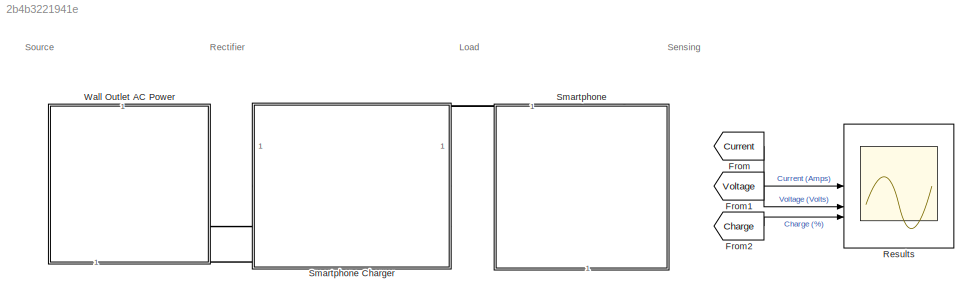
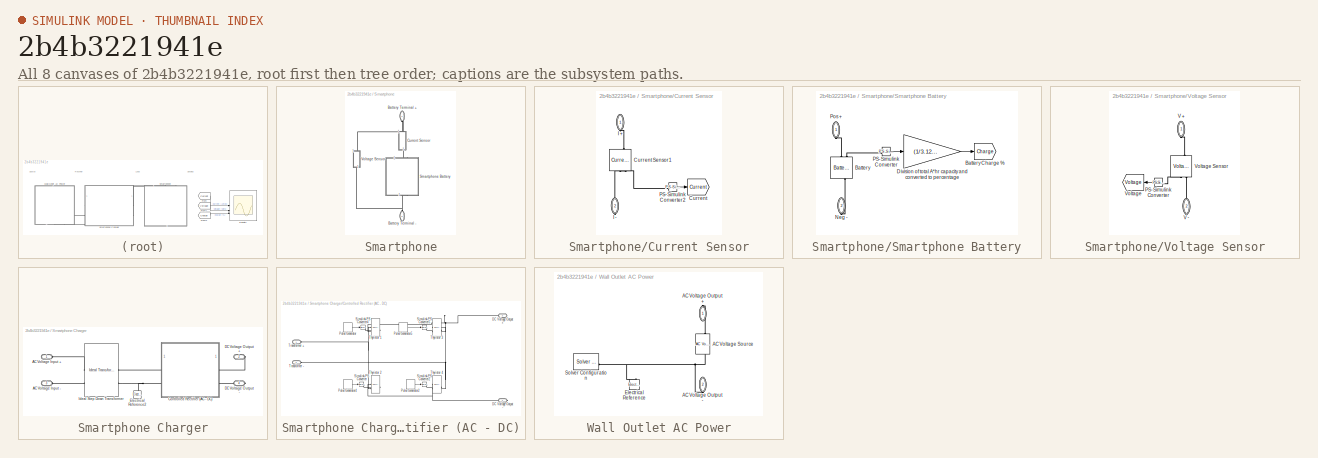
[diagram: thumbnail index - all 8 canvases of the model, root first then tree order]
MODEL slx_2b4b3221941e
KIND model
CONFIG AbsTol = auto
CONFIG EnableMultiTasking = off
CONFIG FixedStep = auto
CONFIG MaxStep = auto
CONFIG MinStep = auto
CONFIG RelTol = 1e-3
CONFIG SampleTimeConstraint = Unconstrained
CONFIG SolverName = ode23t
CONFIG StartTime = 0.0
CONFIG StopTime = 10
BLOCK [From] From
  GotoTag = Current
  TagVisibility = global
BLOCK [From] From1
  GotoTag = Voltage
  TagVisibility = global
BLOCK [From] From2
  GotoTag = Charge
  TagVisibility = global
BLOCK [Scope] Results
  Floating = off
  NumInputPorts = 3
  ScopeSpecificationString = Simulink.scopes.TimeScopeBlockCfg('CurrentConfiguration', extmgr.ConfigurationSet(extmgr.Configuration('Core','General UI',true),extmgr.Configuration('Core','Source UI',true),extmgr.Configuration('Sources','WiredSimulink',true,'DataLoggingVariableName','ScopeData1'),extmgr.Configuration('Visuals','Time Domain',true,'SerializedDisplays',{struct('MinYLimReal','-7.65897','MaxYLimReal','68.93058','YLa...<+3444ch>
BLOCK [SubSystem] Smartphone
  PortSchema = {"entries":[{"content":{"sides":[{"content":{},"type":"ConnectorPlacement.EquallySpacedRectSide","uuid":"c6623932-9384-4505-9c8a-7aa7c6d03efe"},{"content":{"side":"RIGHT"},"type":"ConnectorPlacement.EquallySpacedRectSide","uuid":"b63081fa-6f2e-4d52-89b7-0b15c2ff5a8a"},{"content":{"connectorIds":["LConn1","LConn2"],"side":"TOP"},"type":"ConnectorPlacement.EquallySpacedRectSide","uuid":"293a2b80-333...<+211ch>
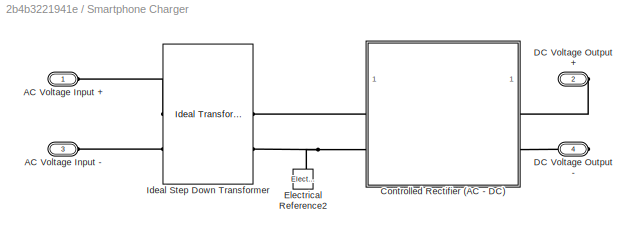
BLOCK [SubSystem] Smartphone Charger
BLOCK [PMIOPort] Smartphone Charger/AC Voltage Input +
  Side = Left
BLOCK [PMIOPort] Smartphone Charger/AC Voltage Input -
  Port = 3
  Side = Left
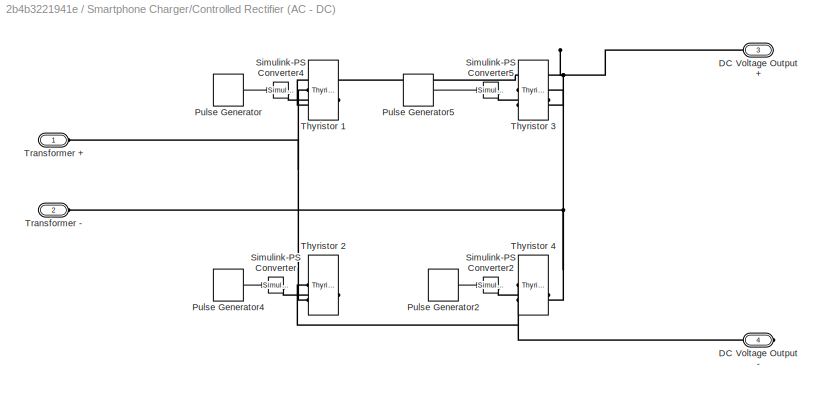
BLOCK [SubSystem] Smartphone Charger/Controlled Rectifier (AC - DC)
BLOCK [PMIOPort] Smartphone Charger/Controlled Rectifier (AC - DC)/DC Voltage Output +
  Port = 3
  Side = Right
BLOCK [PMIOPort] Smartphone Charger/Controlled Rectifier (AC - DC)/DC Voltage Output -
  Port = 4
  Side = Right
BLOCK [DiscretePulseGenerator] Smartphone Charger/Controlled Rectifier (AC - DC)/Pulse Generator
  Period = 0.02
  PhaseDelay = 30*0.02/360
  PulseType = Time based
  PulseWidth = 5
BLOCK [DiscretePulseGenerator] Smartphone Charger/Controlled Rectifier (AC - DC)/Pulse Generator2
  Period = 0.02
  PhaseDelay = 30*0.02/360
  PulseType = Time based
  PulseWidth = 5
BLOCK [DiscretePulseGenerator] Smartphone Charger/Controlled Rectifier (AC - DC)/Pulse Generator4
  Period = 0.02
  PhaseDelay = (180+30)*0.02/360
  PulseType = Time based
  PulseWidth = 5
BLOCK [DiscretePulseGenerator] Smartphone Charger/Controlled Rectifier (AC - DC)/Pulse Generator5
  Period = 0.02
  PhaseDelay = (180+30)*0.02/360
  PulseType = Time based
  PulseWidth = 5
BLOCK [Reference] Smartphone Charger/Controlled Rectifier (AC - DC)/Simulink-PS Converter  REF=nesl_utility/Simulink-PS
Converter
  SourceBlock = nesl_utility/Simulink-PS\nConverter
  SourceType = Simulink-PS\nConverter
BLOCK [Reference] Smartphone Charger/Controlled Rectifier (AC - DC)/Simulink-PS Converter2  REF=nesl_utility/Simulink-PS
Converter
  SourceBlock = nesl_utility/Simulink-PS\nConverter
  SourceType = Simulink-PS\nConverter
BLOCK [Reference] Smartphone Charger/Controlled Rectifier (AC - DC)/Simulink-PS Converter4  REF=nesl_utility/Simulink-PS
Converter
  SourceBlock = nesl_utility/Simulink-PS\nConverter
  SourceType = Simulink-PS\nConverter
BLOCK [Reference] Smartphone Charger/Controlled Rectifier (AC - DC)/Simulink-PS Converter5  REF=nesl_utility/Simulink-PS
Converter
  SourceBlock = nesl_utility/Simulink-PS\nConverter
  SourceType = Simulink-PS\nConverter
BLOCK [Reference] Smartphone Charger/Controlled Rectifier (AC - DC)/Thyristor 1  REF=ee_lib/Semiconductors &
Converters/Thyristor
(Piecewise
Linear)
  NameLocation = right
  SourceBlock = ee_lib/Semiconductors &\nConverters/Thyristor\n(Piecewise\nLinear)
  SourceType = Thyristor\n(Piecewise\nLinear)
BLOCK [Reference] Smartphone Charger/Controlled Rectifier (AC - DC)/Thyristor 2  REF=ee_lib/Semiconductors &
Converters/Thyristor
(Piecewise
Linear)
  NameLocation = right
  SourceBlock = ee_lib/Semiconductors &\nConverters/Thyristor\n(Piecewise\nLinear)
  SourceType = Thyristor\n(Piecewise\nLinear)
BLOCK [Reference] Smartphone Charger/Controlled Rectifier (AC - DC)/Thyristor 3  REF=ee_lib/Semiconductors &
Converters/Thyristor
(Piecewise
Linear)
  NameLocation = right
  SourceBlock = ee_lib/Semiconductors &\nConverters/Thyristor\n(Piecewise\nLinear)
  SourceType = Thyristor\n(Piecewise\nLinear)
BLOCK [Reference] Smartphone Charger/Controlled Rectifier (AC - DC)/Thyristor 4  REF=ee_lib/Semiconductors &
Converters/Thyristor
(Piecewise
Linear)
  NameLocation = right
  SourceBlock = ee_lib/Semiconductors &\nConverters/Thyristor\n(Piecewise\nLinear)
  SourceType = Thyristor\n(Piecewise\nLinear)
BLOCK [PMIOPort] Smartphone Charger/Controlled Rectifier (AC - DC)/Transformer +
  Side = Left
BLOCK [PMIOPort] Smartphone Charger/Controlled Rectifier (AC - DC)/Transformer -
  Port = 2
  Side = Left
BLOCK [PMIOPort] Smartphone Charger/DC Voltage Output +
  Port = 2
  Side = Right
BLOCK [PMIOPort] Smartphone Charger/DC Voltage Output -
  Port = 4
  Side = Right
BLOCK [Reference] Smartphone Charger/Electrical Reference2  REF=fl_lib/Electrical/Electrical Elements/Electrical Reference
  NameLocation = right
  SourceBlock = fl_lib/Electrical/Electrical Elements/Electrical Reference
  SourceType = Electrical Reference
BLOCK [Reference] Smartphone Charger/Ideal Step Down Transformer  REF=fl_lib/Electrical/Electrical Elements/Ideal Transformer
  SourceBlock = fl_lib/Electrical/Electrical Elements/Ideal Transformer
  SourceType = Ideal Transformer
BLOCK [PMIOPort] Smartphone/Battery Terminal +
  NameLocation = left
  Side = Left
BLOCK [PMIOPort] Smartphone/Battery Terminal -
  NameLocation = left
  Port = 2
  Side = Left
BLOCK [SubSystem] Smartphone/Current Sensor
  NameLocation = left
BLOCK [Goto] Smartphone/Current Sensor/Current
  GotoTag = Current
  TagVisibility = global
BLOCK [Reference] Smartphone/Current Sensor/Current Sensor1  REF=fl_lib/Electrical/Electrical Sensors/Current Sensor
  NameLocation = left
  SourceBlock = fl_lib/Electrical/Electrical Sensors/Current Sensor
  SourceType = Current Sensor
BLOCK [PMIOPort] Smartphone/Current Sensor/I +
  NameLocation = left
  Side = Left
BLOCK [PMIOPort] Smartphone/Current Sensor/I -
  NameLocation = left
  Port = 2
  Side = Right
BLOCK [Reference] Smartphone/Current Sensor/PS-Simulink Converter2  REF=nesl_utility/PS-Simulink
Converter
  SourceBlock = nesl_utility/PS-Simulink\nConverter
  SourceType = PS-Simulink\nConverter
BLOCK [SubSystem] Smartphone/Smartphone Battery
  NameLocation = right
BLOCK [Reference] Smartphone/Smartphone Battery/Battery  REF=batteryecm_lib/Battery
  LibrarySourceBlock = batt_lib/Cells/Battery
  NameLocation = left
  SourceBlock = batteryecm_lib/Battery
  SourceType = Battery
BLOCK [Goto] Smartphone/Smartphone Battery/Battery Charge %
  GotoTag = Charge
  TagVisibility = global
BLOCK [Gain] Smartphone/Smartphone Battery/Division of total A*hr capacity and converted to percentage
  Gain = (1/3.125)*100
BLOCK [PMIOPort] Smartphone/Smartphone Battery/Neg -
  NameLocation = left
  Port = 2
  Side = Right
BLOCK [Reference] Smartphone/Smartphone Battery/PS-Simulink Converter  REF=nesl_utility/PS-Simulink
Converter
  SourceBlock = nesl_utility/PS-Simulink\nConverter
  SourceType = PS-Simulink\nConverter
BLOCK [PMIOPort] Smartphone/Smartphone Battery/Pos +
  NameLocation = left
  Side = Left
BLOCK [SubSystem] Smartphone/Voltage Sensor
  NameLocation = left
BLOCK [Reference] Smartphone/Voltage Sensor/PS-Simulink Converter  REF=nesl_utility/PS-Simulink
Converter
  SourceBlock = nesl_utility/PS-Simulink\nConverter
  SourceType = PS-Simulink\nConverter
BLOCK [PMIOPort] Smartphone/Voltage Sensor/V +
  NameLocation = right
  Side = Left
BLOCK [PMIOPort] Smartphone/Voltage Sensor/V -
  NameLocation = right
  Port = 2
  Side = Right
BLOCK [Goto] Smartphone/Voltage Sensor/Voltage
  GotoTag = Voltage
  TagVisibility = global
BLOCK [Reference] Smartphone/Voltage Sensor/Voltage Sensor  REF=fl_lib/Electrical/Electrical Sensors/Voltage Sensor
  NameLocation = right
  SourceBlock = fl_lib/Electrical/Electrical Sensors/Voltage Sensor
  SourceType = Voltage Sensor
BLOCK [SubSystem] Wall Outlet AC Power
  PortSchema = {"entries":[{"content":{"sides":[{"content":{},"type":"ConnectorPlacement.EquallySpacedRectSide","uuid":"c6623932-9384-4505-9c8a-7aa7c6d03efe"},{"content":{"side":"RIGHT"},"type":"ConnectorPlacement.EquallySpacedRectSide","uuid":"b63081fa-6f2e-4d52-89b7-0b15c2ff5a8a"},{"content":{"side":"TOP"},"type":"ConnectorPlacement.EquallySpacedRectSide","uuid":"293a2b80-333e-46a9-baf9-140dd0ae167b"},{"conten...<+337ch>
BLOCK [PMIOPort] Wall Outlet AC Power/AC Voltage Output +
  NameLocation = left
  Side = Right
BLOCK [PMIOPort] Wall Outlet AC Power/AC Voltage Output -
  NameLocation = left
  Port = 2
  Side = Right
BLOCK [Reference] Wall Outlet AC Power/AC Voltage Source  REF=fl_lib/Electrical/Electrical Sources/AC Voltage Source
  NameLocation = right
  SourceBlock = fl_lib/Electrical/Electrical Sources/AC Voltage Source
  SourceType = AC Voltage Source
BLOCK [Reference] Wall Outlet AC Power/Electrical Reference  REF=fl_lib/Electrical/Electrical Elements/Electrical Reference
  NameLocation = right
  SourceBlock = fl_lib/Electrical/Electrical Elements/Electrical Reference
  SourceType = Electrical Reference
BLOCK [Reference] Wall Outlet AC Power/Solver Configuration  REF=nesl_utility/Solver
Configuration
  SourceBlock = nesl_utility/Solver\nConfiguration
  SourceType = Solver\nConfiguration
ANNOTATION (root): Load
ANNOTATION (root): Rectifier
ANNOTATION (root): Sensing
ANNOTATION (root): Source
LINE From1:1 -> Results:2
LINE From2:1 -> Results:3
LINE From:1 -> Results:1
LINE Smartphone Charger/Controlled Rectifier (AC - DC)/Pulse Generator2:1 -> Smartphone Charger/Controlled Rectifier (AC - DC)/Simulink-PS Converter2:1
LINE Smartphone Charger/Controlled Rectifier (AC - DC)/Pulse Generator4:1 -> Smartphone Charger/Controlled Rectifier (AC - DC)/Simulink-PS Converter:1
LINE Smartphone Charger/Controlled Rectifier (AC - DC)/Pulse Generator5:1 -> Smartphone Charger/Controlled Rectifier (AC - DC)/Simulink-PS Converter5:1
LINE Smartphone Charger/Controlled Rectifier (AC - DC)/Pulse Generator:1 -> Smartphone Charger/Controlled Rectifier (AC - DC)/Simulink-PS Converter4:1
LINE Smartphone/Current Sensor/PS-Simulink Converter2:1 -> Smartphone/Current Sensor/Current:1
LINE Smartphone/Smartphone Battery/Division of total A*hr capacity and converted to percentage:1 -> Smartphone/Smartphone Battery/Battery Charge %:1
LINE Smartphone/Smartphone Battery/PS-Simulink Converter:1 -> Smartphone/Smartphone Battery/Division of total A*hr capacity and converted to percentage:1
LINE Smartphone/Voltage Sensor/PS-Simulink Converter:1 -> Smartphone/Voltage Sensor/Voltage:1
PLINE Smartphone Charger/AC Voltage Input +:RConn1 -- Smartphone Charger/Ideal Step Down Transformer:LConn1
PLINE Smartphone Charger/AC Voltage Input -:RConn1 -- Smartphone Charger/Ideal Step Down Transformer:LConn2
PNET net1: Smartphone Charger/Controlled Rectifier (AC - DC)/DC Voltage Output +:RConn1 -- Smartphone Charger/Controlled Rectifier (AC - DC)/Thyristor 1:RConn2 -- Smartphone Charger/Controlled Rectifier (AC - DC)/Thyristor 3:RConn2
PNET net2: Smartphone Charger/Controlled Rectifier (AC - DC)/DC Voltage Output -:RConn1 -- Smartphone Charger/Controlled Rectifier (AC - DC)/Thyristor 2:RConn1 -- Smartphone Charger/Controlled Rectifier (AC - DC)/Thyristor 4:RConn1
PLINE Smartphone Charger/Controlled Rectifier (AC - DC)/Simulink-PS Converter2:RConn1 -- Smartphone Charger/Controlled Rectifier (AC - DC)/Thyristor 4:LConn1
PLINE Smartphone Charger/Controlled Rectifier (AC - DC)/Simulink-PS Converter4:RConn1 -- Smartphone Charger/Controlled Rectifier (AC - DC)/Thyristor 1:LConn1
PLINE Smartphone Charger/Controlled Rectifier (AC - DC)/Simulink-PS Converter5:RConn1 -- Smartphone Charger/Controlled Rectifier (AC - DC)/Thyristor 3:LConn1
PLINE Smartphone Charger/Controlled Rectifier (AC - DC)/Simulink-PS Converter:RConn1 -- Smartphone Charger/Controlled Rectifier (AC - DC)/Thyristor 2:LConn1
PNET net3: Smartphone Charger/Controlled Rectifier (AC - DC)/Thyristor 1:RConn1 -- Smartphone Charger/Controlled Rectifier (AC - DC)/Thyristor 2:RConn2 -- Smartphone Charger/Controlled Rectifier (AC - DC)/Transformer +:RConn1
PNET net4: Smartphone Charger/Controlled Rectifier (AC - DC)/Thyristor 3:RConn1 -- Smartphone Charger/Controlled Rectifier (AC - DC)/Thyristor 4:RConn2 -- Smartphone Charger/Controlled Rectifier (AC - DC)/Transformer -:RConn1
PLINE Smartphone Charger/Controlled Rectifier (AC - DC):LConn1 -- Smartphone Charger/Ideal Step Down Transformer:RConn1
PNET net5: Smartphone Charger/Controlled Rectifier (AC - DC):LConn2 -- Smartphone Charger/Electrical Reference2:LConn1 -- Smartphone Charger/Ideal Step Down Transformer:RConn2
PLINE Smartphone Charger/Controlled Rectifier (AC - DC):RConn1 -- Smartphone Charger/DC Voltage Output +:RConn1
PLINE Smartphone Charger/Controlled Rectifier (AC - DC):RConn2 -- Smartphone Charger/DC Voltage Output -:RConn1
PLINE Smartphone Charger:LConn1 -- Wall Outlet AC Power:RConn1
PLINE Smartphone Charger:LConn2 -- Wall Outlet AC Power:RConn2
PLINE Smartphone Charger:RConn1 -- Smartphone:LConn1
PLINE Smartphone Charger:RConn2 -- Smartphone:LConn2
PNET net6: Smartphone/Battery Terminal +:RConn1 -- Smartphone/Current Sensor:LConn1 -- Smartphone/Voltage Sensor:LConn1
PNET net7: Smartphone/Battery Terminal -:RConn1 -- Smartphone/Smartphone Battery:RConn1 -- Smartphone/Voltage Sensor:RConn1
PLINE Smartphone/Current Sensor/Current Sensor1:LConn1 -- Smartphone/Current Sensor/I +:RConn1
PLINE Smartphone/Current Sensor/Current Sensor1:RConn1 -- Smartphone/Current Sensor/PS-Simulink Converter2:LConn1
PLINE Smartphone/Current Sensor/Current Sensor1:RConn2 -- Smartphone/Current Sensor/I -:RConn1
PLINE Smartphone/Current Sensor:RConn1 -- Smartphone/Smartphone Battery:LConn1
PLINE Smartphone/Smartphone Battery/Battery:LConn1 -- Smartphone/Smartphone Battery/Pos +:RConn1
PLINE Smartphone/Smartphone Battery/Battery:LConn2 -- Smartphone/Smartphone Battery/PS-Simulink Converter:LConn1
PLINE Smartphone/Smartphone Battery/Battery:RConn1 -- Smartphone/Smartphone Battery/Neg -:RConn1
PLINE Smartphone/Voltage Sensor/PS-Simulink Converter:LConn1 -- Smartphone/Voltage Sensor/Voltage Sensor:RConn1
PLINE Smartphone/Voltage Sensor/V +:RConn1 -- Smartphone/Voltage Sensor/Voltage Sensor:LConn1
PLINE Smartphone/Voltage Sensor/V -:RConn1 -- Smartphone/Voltage Sensor/Voltage Sensor:RConn2
PLINE Wall Outlet AC Power/AC Voltage Output +:RConn1 -- Wall Outlet AC Power/AC Voltage Source:LConn1
PNET net8: Wall Outlet AC Power/AC Voltage Output -:RConn1 -- Wall Outlet AC Power/AC Voltage Source:RConn1 -- Wall Outlet AC Power/Electrical Reference:LConn1 -- Wall Outlet AC Power/Solver Configuration:RConn1
note: PNET lines group multi-terminal physical nets as a canonical sorted terminal list (undirected conserving connections); 2-terminal nets keep the pairwise PLINE form
